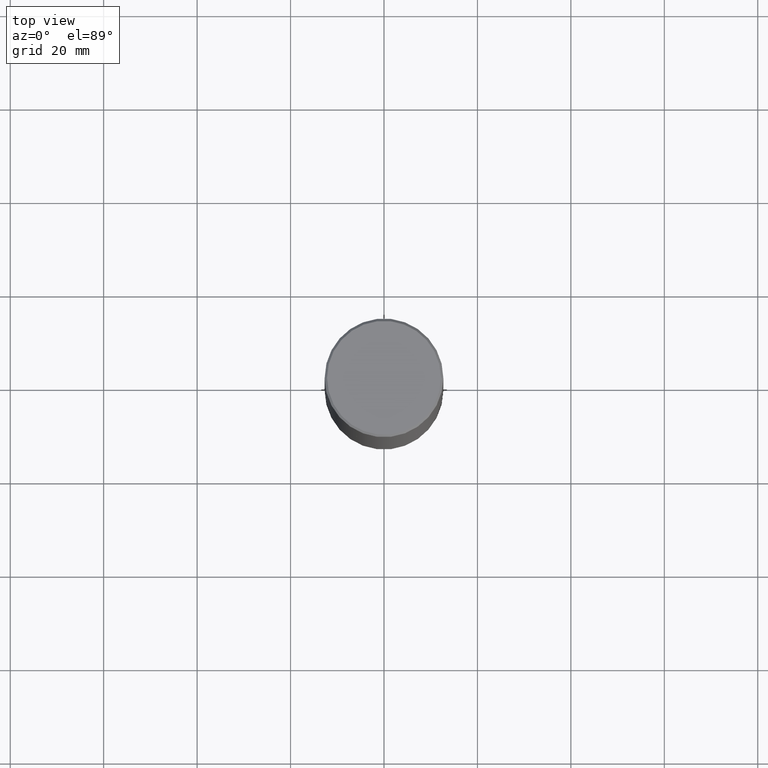
[diagram: clean part render]
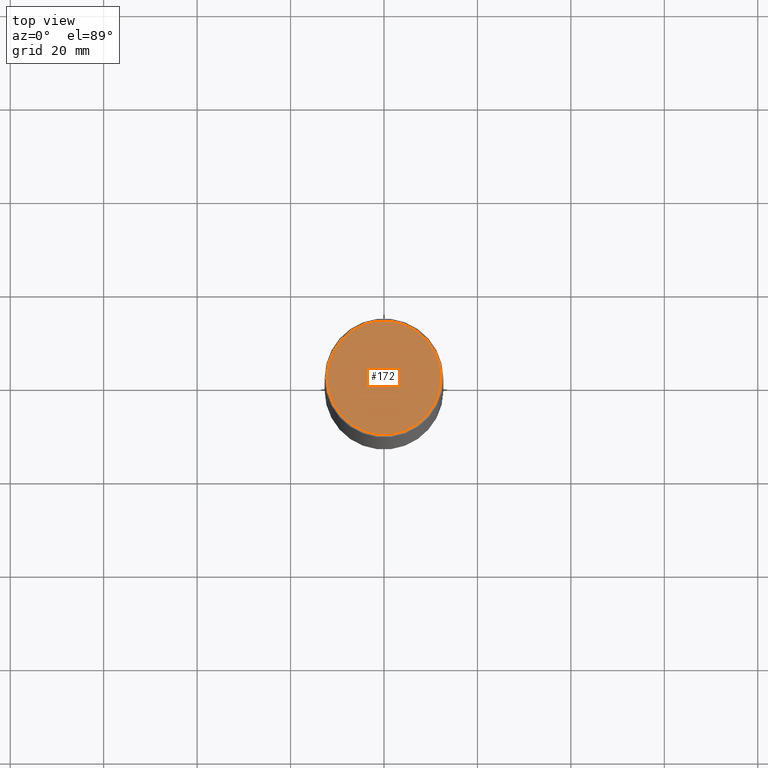
[diagram: same view with one face highlighted and labeled with its STEP entity id]
A machine part, top view. The second image highlights one B-rep face of the part: STEP entity #172.
In plain terms, the highlighted planar face has unit normal (0, -0, -1).
Its self-contained STEP definition (entity closure, byte-faithful):
#9 = VERTEX_POINT ( 'NONE', #99 ) ;
#17 = CIRCLE ( 'NONE', #368, 0.4799999999999996492 ) ;
#19 = CIRCLE ( 'NONE', #316, 0.4799999999999996492 ) ;
#30 = DIRECTION ( 'NONE',  ( -2.445468806185136597E-29, 3.491481338843145583E-15, 1.000000000000000000 ) ) ;
#77 = CARTESIAN_POINT ( 'NONE',  ( -3.131554243005659264E-46, 4.471029511141341874E-32, 1.280553747030123384E-17 ) ) ;
#98 = PLANE ( 'NONE',  #330 ) ;
#99 = CARTESIAN_POINT ( 'NONE',  ( -0.4799999999999996492, 3.386736898677836436E-15, 1.280553747027767124E-17 ) ) ;
#107 = CARTESIAN_POINT ( 'NONE',  ( -3.131554243005659264E-46, 4.471029511141341874E-32, 1.280553747030123384E-17 ) ) ;
#131 = DIRECTION ( 'NONE',  ( 2.438088387897960049E-29, -3.491481338843145188E-15, -1.000000000000000000 ) ) ;
#152 = EDGE_CURVE ( 'NONE', #9, #302, #17, .T. ) ;
#164 = CARTESIAN_POINT ( 'NONE',  ( 3.351822085289405181E-15, 0.4799999999999996492, -1.669508273909558064E-15 ) ) ;
#172 = ADVANCED_FACE ( 'NONE', ( #345 ), #98, .F. ) ;
#188 = EDGE_LOOP ( 'NONE', ( #245, #267 ) ) ;
#226 = DIRECTION ( 'NONE',  ( -1.000000000000000000, 6.982962677686265922E-15, -4.876176775795935793E-29 ) ) ;
#235 = EDGE_CURVE ( 'NONE', #302, #9, #19, .T. ) ;
#245 = ORIENTED_EDGE ( 'NONE', *, *, #152, .T. ) ;
#249 = DIRECTION ( 'NONE',  ( -2.445468806185136597E-29, 3.491481338843145583E-15, 1.000000000000000000 ) ) ;
#267 = ORIENTED_EDGE ( 'NONE', *, *, #235, .T. ) ;
#284 = DIRECTION ( 'NONE',  ( 1.000000000000000000, -6.982962677686267499E-15, 4.876036955247132767E-29 ) ) ;
#302 = VERTEX_POINT ( 'NONE', #352 ) ;
#316 = AXIS2_PLACEMENT_3D ( 'NONE', #107, #30, #385 ) ;
#330 = AXIS2_PLACEMENT_3D ( 'NONE', #164, #131, #226 ) ;
#345 = FACE_OUTER_BOUND ( 'NONE', #188, .T. ) ;
#352 = CARTESIAN_POINT ( 'NONE',  ( 0.4799999999999996492, -3.396558832296479732E-15, 1.280553747032483033E-17 ) ) ;
#368 = AXIS2_PLACEMENT_3D ( 'NONE', #77, #249, #284 ) ;
#385 = DIRECTION ( 'NONE',  ( 1.000000000000000000, -6.982962677686267499E-15, 4.876036955247132767E-29 ) ) ;